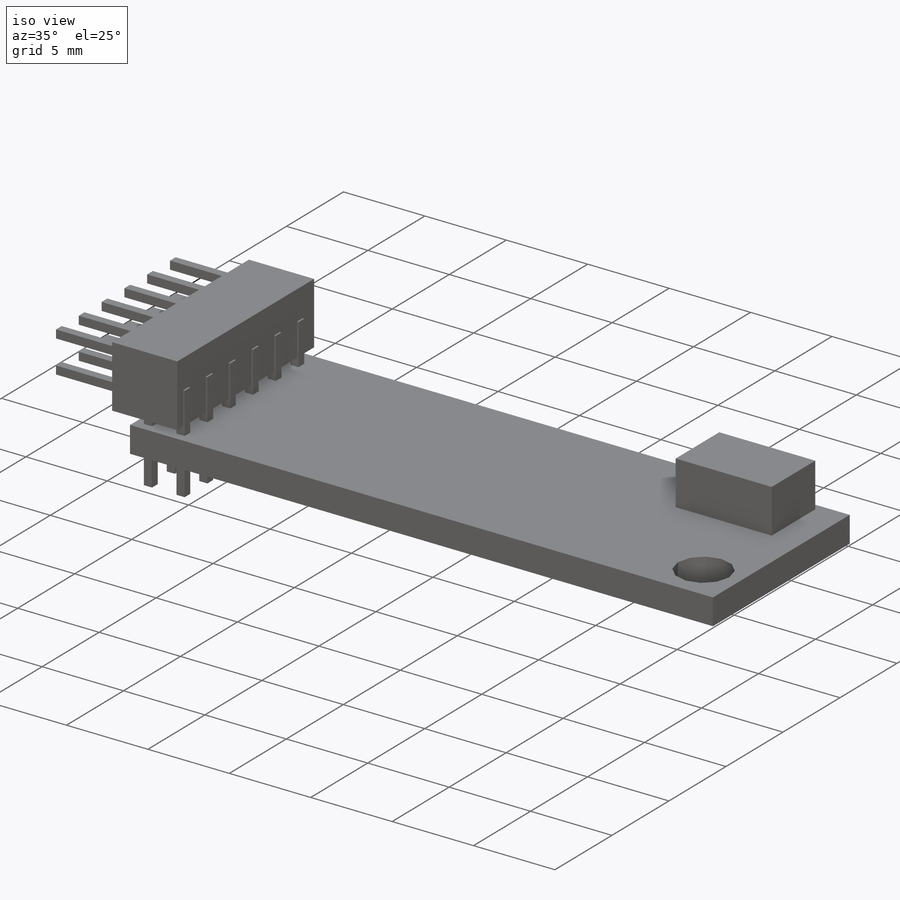
[diagram: iso view]
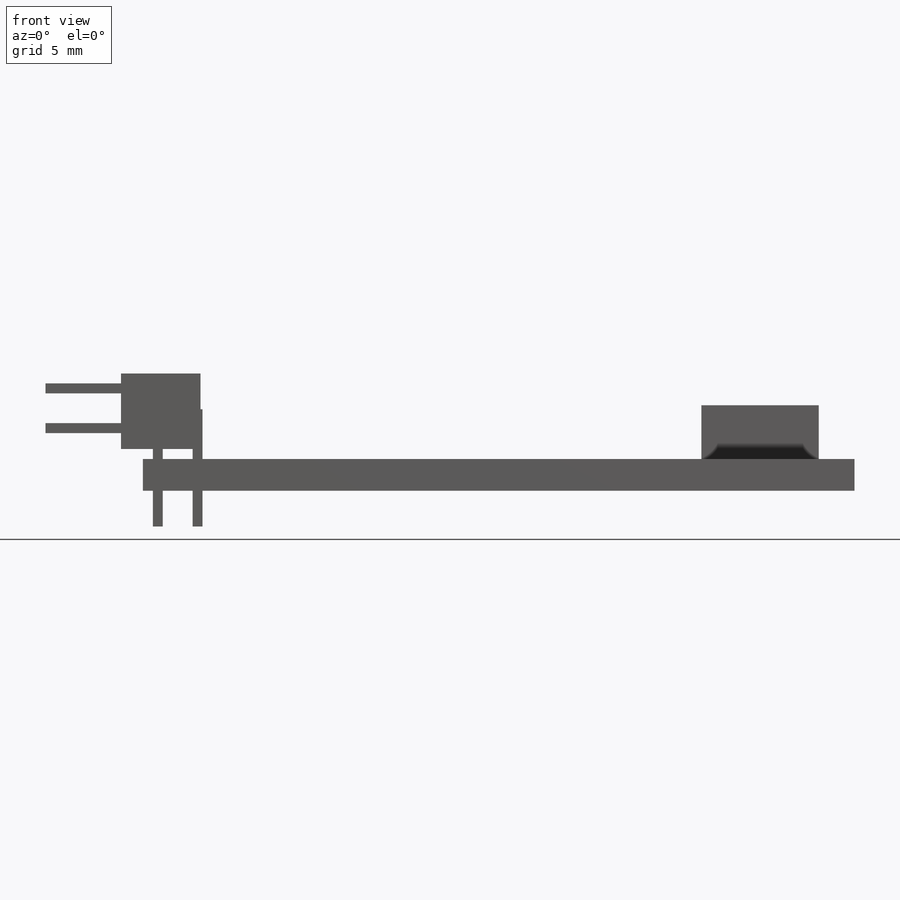
[diagram: front view]
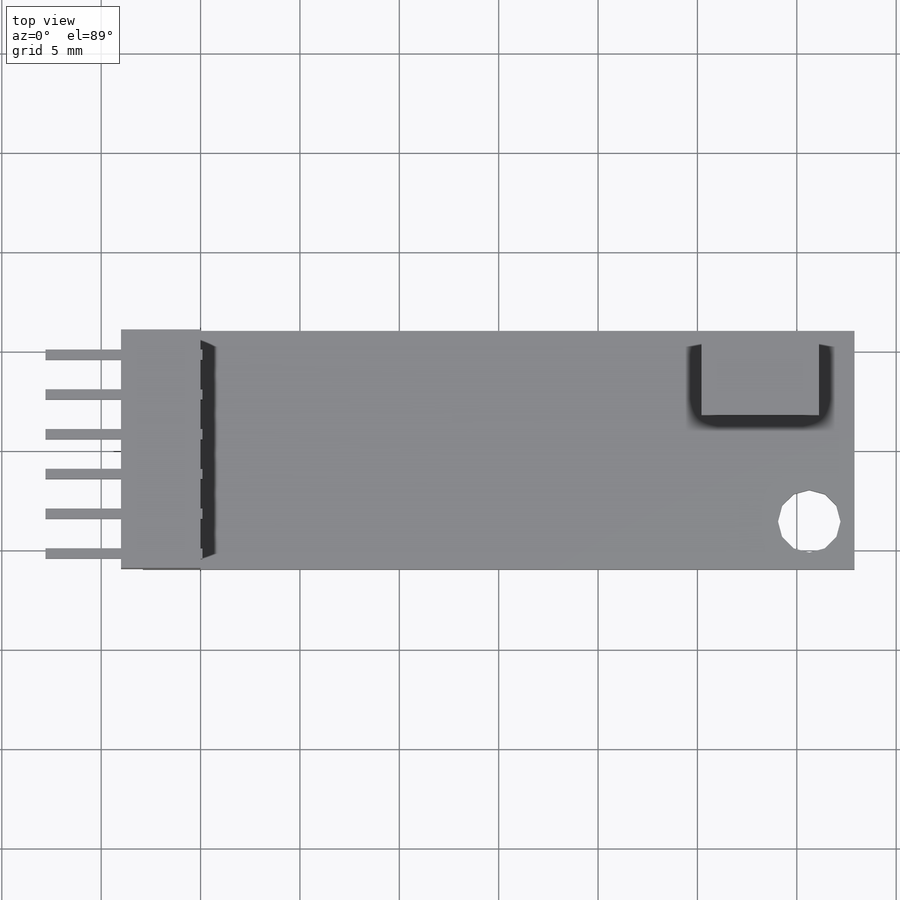
[diagram: top view]
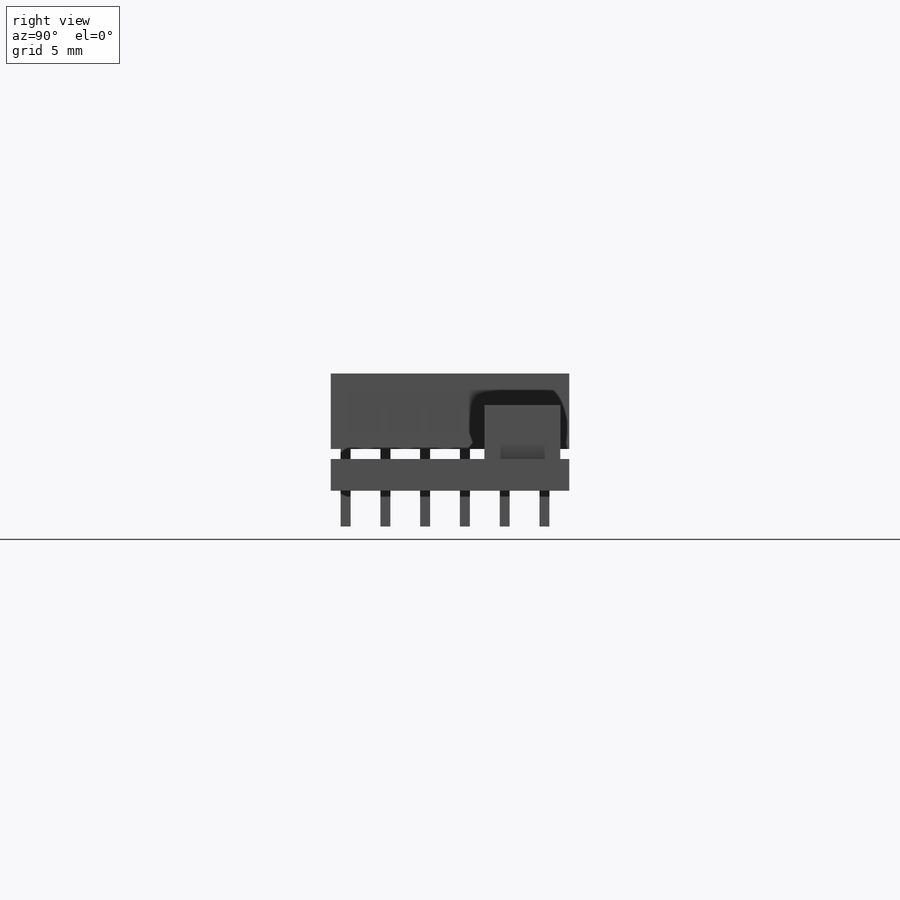
[diagram: right view]
SOLIDWORKS PART (.sldprt)
format: sldprt  version: not decoded by parser v0  size: 654,848 bytes
history: native  units: mm
features: sketch x6, extrude x5, pattern_linear x2, material x1, cut_extrude x1 (+13 scaffold rows collapsed)
feature tree (28):
  scaffold x13  (default folders/planes/origin — collapsed)
  material  "S-Glass Fiber"
  sketch  "Sketch1"  dims[D1=12.0mm D2=6.0mm D3=35.8mm D4=17.9mm]
  extrude  "Board"  Depth=1.6mm
  sketch  "Sketch2"  dims[c1.D1=3.15mm c1.D2=3.15mm c1.D3=3.15mm c2.D2=0.7mm c2.D3=0.85mm]
  cut_extrude  "Hole"  [1 undecoded]
  sketch  "Sketch3"  dims[D1=5.9mm D2=3.82mm D3=0.45mm D4=1.8mm]
  extrude  "Setup Switch"  Depth=2.7mm
  sketch  "Sketch4"  dims[c1.D1=0.5mm c1.D2=~0.807902mm c1.D3=0.5mm c1.D4=0.5mm c2.D2=0.5mm]
  extrude  "Surface Connectors"  Depth=3.4mm
  pattern_linear  "LPattern1"  Count1=6 Count2=2 Spacing1=2mm Spacing2=2mm
  sketch  "Sketch5"  dims[D1=4.0mm D2=3.8mm D3=2.9mm D4=4.3mm]
  extrude  "Connector Body"  Depth=12mm
  sketch  "Sketch6"  dims[D1=0.5mm D2=0.5mm D3=0.5mm D4=0.5mm]
  extrude  "Connector Pin"  Depth=3.8mm
  pattern_linear  "LPattern2"  Count1=6 Count2=2 Spacing1=2mm Spacing2=2mm
decode coverage: 13 of 14 modeling features carry decoded parameters
note: ~ marks probable driven/reference dimensions
note: 1 parameter value undecoded
note: suppression state not decoded; provenance and decode notes live in map.json
